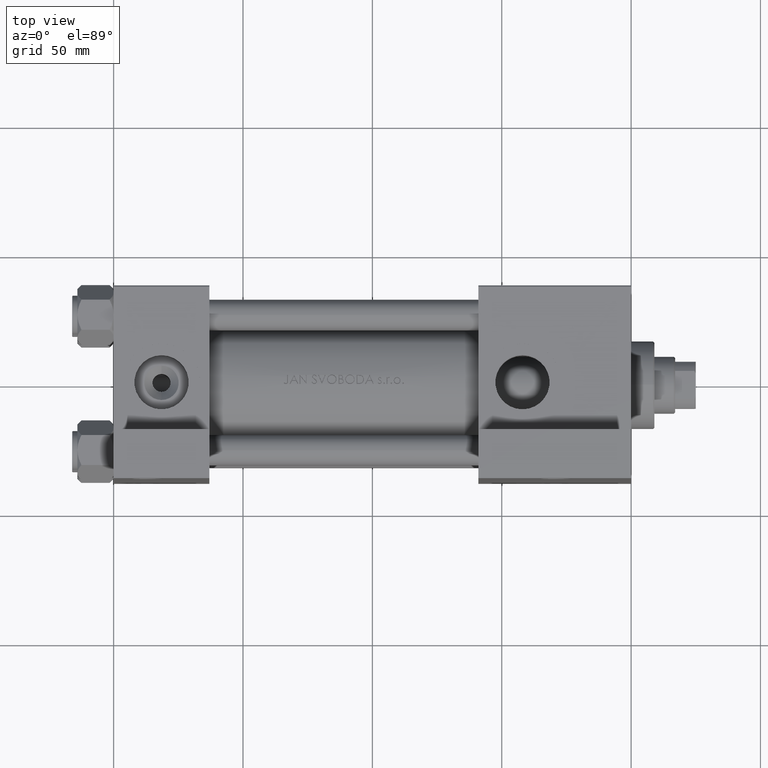
[diagram: clean part render]
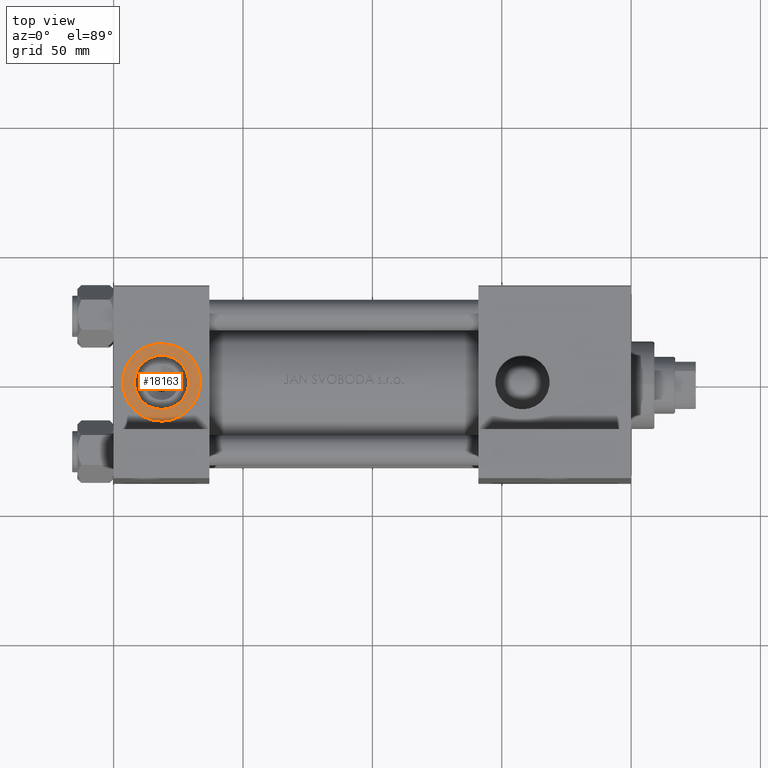
[diagram: same view with one face highlighted and labeled with its STEP entity id]
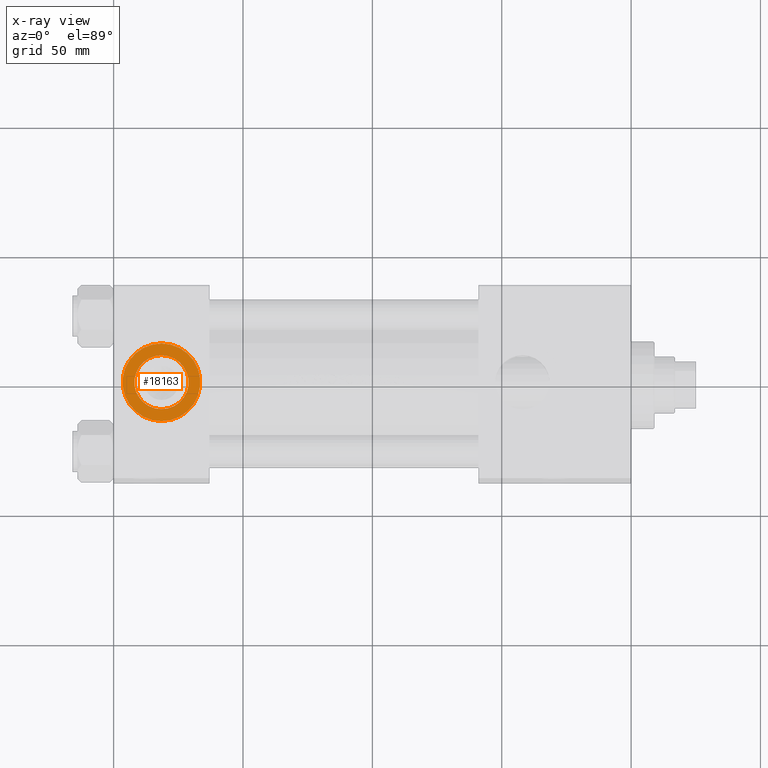
[diagram: x-ray of the same camera — body ghosted, the highlighted face saturated]
A machine part, top view. The second image highlights one B-rep face of the part: STEP entity #18163.
The next image is the same camera in x-ray: the body ghosted, the highlighted face saturated — about 0% of this face is hidden behind the body in this view.
In plain terms, the highlighted planar face has unit normal (0, -0, 1).
Its self-contained STEP definition (entity closure, byte-faithful):
#1191 = EDGE_LOOP ( 'NONE', ( #5003, #13376 ) ) ;
#3496 = EDGE_LOOP ( 'NONE', ( #47216, #14622 ) ) ;
#5003 = ORIENTED_EDGE ( 'NONE', *, *, #8267, .T. ) ;
#5053 = VERTEX_POINT ( 'NONE', #21001 ) ;
#5473 = CARTESIAN_POINT ( 'NONE',  ( 18.50000000000000000, -37.30000000000000426, -10.48000000000000398 ) ) ;
#5863 = AXIS2_PLACEMENT_3D ( 'NONE', #30439, #11515, #7799 ) ;
#7799 = DIRECTION ( 'NONE',  ( 0.000000000000000000, 0.000000000000000000, -1.000000000000000000 ) ) ;
#8267 = EDGE_CURVE ( 'NONE', #5053, #44483, #43677, .T. ) ;
#8284 = DIRECTION ( 'NONE',  ( 0.000000000000000000, 0.000000000000000000, -1.000000000000000000 ) ) ;
#9392 = CARTESIAN_POINT ( 'NONE',  ( 18.50000000000000000, -37.30000000000000426, -3.452099717193846907E-15 ) ) ;
#11515 = DIRECTION ( 'NONE',  ( 0.000000000000000000, -1.000000000000000000, -8.673617379884036705E-17 ) ) ;
#12239 = VERTEX_POINT ( 'NONE', #31884 ) ;
#12497 = CARTESIAN_POINT ( 'NONE',  ( 18.50000000000000000, -37.30000000000000426, -3.452099717193846907E-15 ) ) ;
#13376 = ORIENTED_EDGE ( 'NONE', *, *, #29899, .T. ) ;
#14622 = ORIENTED_EDGE ( 'NONE', *, *, #33131, .F. ) ;
#15233 = AXIS2_PLACEMENT_3D ( 'NONE', #9392, #32047, #24815 ) ;
#17463 = AXIS2_PLACEMENT_3D ( 'NONE', #12497, #20459, #8284 ) ;
#18163 = ADVANCED_FACE ( 'NONE', ( #30939, #26938 ), #34429, .T. ) ;
#19244 = DIRECTION ( 'NONE',  ( 0.000000000000000000, -1.000000000000000000, -8.673617379884036705E-17 ) ) ;
#20459 = DIRECTION ( 'NONE',  ( 0.000000000000000000, -1.000000000000000000, -8.673617379884036705E-17 ) ) ;
#21001 = CARTESIAN_POINT ( 'NONE',  ( 18.50000000000000000, -37.30000000000000426, -15.00000000000000533 ) ) ;
#22659 = DIRECTION ( 'NONE',  ( 0.000000000000000000, -1.000000000000000000, -8.673617379884036705E-17 ) ) ;
#24045 = AXIS2_PLACEMENT_3D ( 'NONE', #42484, #22659, #49033 ) ;
#24815 = DIRECTION ( 'NONE',  ( 0.000000000000000000, 0.000000000000000000, -1.000000000000000000 ) ) ;
#25301 = EDGE_CURVE ( 'NONE', #40768, #12239, #38979, .T. ) ;
#26938 = FACE_OUTER_BOUND ( 'NONE', #1191, .T. ) ;
#27671 = DIRECTION ( 'NONE',  ( 0.000000000000000000, 8.673617379884036705E-17, -1.000000000000000000 ) ) ;
#29899 = EDGE_CURVE ( 'NONE', #44483, #5053, #35988, .T. ) ;
#30356 = AXIS2_PLACEMENT_3D ( 'NONE', #46600, #19244, #27671 ) ;
#30439 = CARTESIAN_POINT ( 'NONE',  ( 18.50000000000000000, -37.30000000000000426, -3.452099717193846907E-15 ) ) ;
#30939 = FACE_BOUND ( 'NONE', #3496, .T. ) ;
#31884 = CARTESIAN_POINT ( 'NONE',  ( 18.50000000000000000, -37.30000000000000426, 10.47999999999999687 ) ) ;
#32047 = DIRECTION ( 'NONE',  ( 0.000000000000000000, -1.000000000000000000, -8.673617379884036705E-17 ) ) ;
#33131 = EDGE_CURVE ( 'NONE', #12239, #40768, #47991, .T. ) ;
#34429 = PLANE ( 'NONE',  #30356 ) ;
#35988 = CIRCLE ( 'NONE', #24045, 15.00000000000000178 ) ;
#38979 = CIRCLE ( 'NONE', #15233, 10.48000000000000043 ) ;
#40768 = VERTEX_POINT ( 'NONE', #5473 ) ;
#42484 = CARTESIAN_POINT ( 'NONE',  ( 18.50000000000000000, -37.30000000000000426, -3.452099717193846907E-15 ) ) ;
#43182 = CARTESIAN_POINT ( 'NONE',  ( 18.50000000000000355, -37.30000000000000426, 14.99999999999999822 ) ) ;
#43677 = CIRCLE ( 'NONE', #17463, 15.00000000000000178 ) ;
#44483 = VERTEX_POINT ( 'NONE', #43182 ) ;
#46600 = CARTESIAN_POINT ( 'NONE',  ( 18.50000000000000000, -37.30000000000000426, -3.452099717193846907E-15 ) ) ;
#47216 = ORIENTED_EDGE ( 'NONE', *, *, #25301, .F. ) ;
#47991 = CIRCLE ( 'NONE', #5863, 10.48000000000000043 ) ;
#49033 = DIRECTION ( 'NONE',  ( 0.000000000000000000, 0.000000000000000000, -1.000000000000000000 ) ) ;